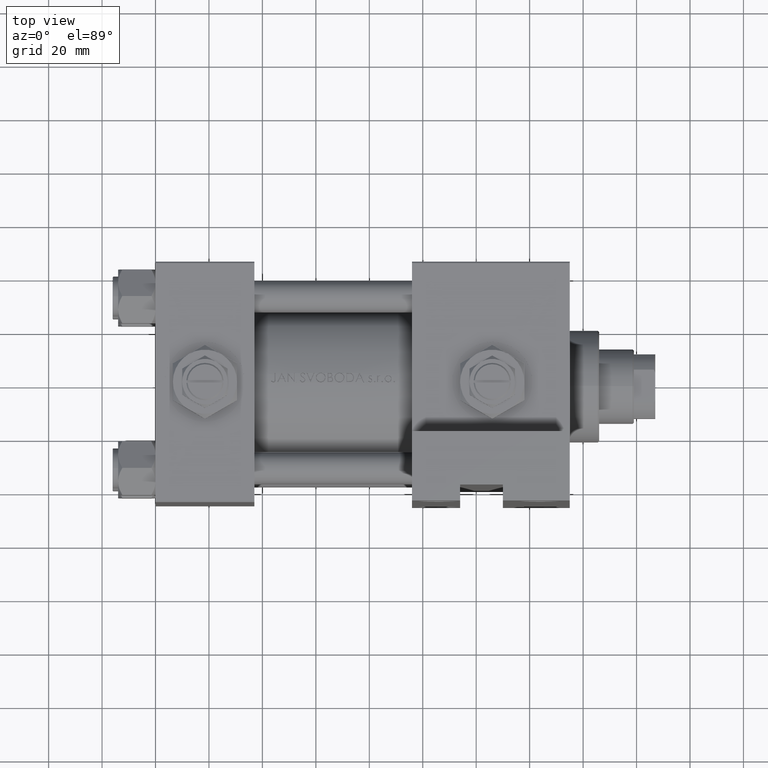
[diagram: clean part render]
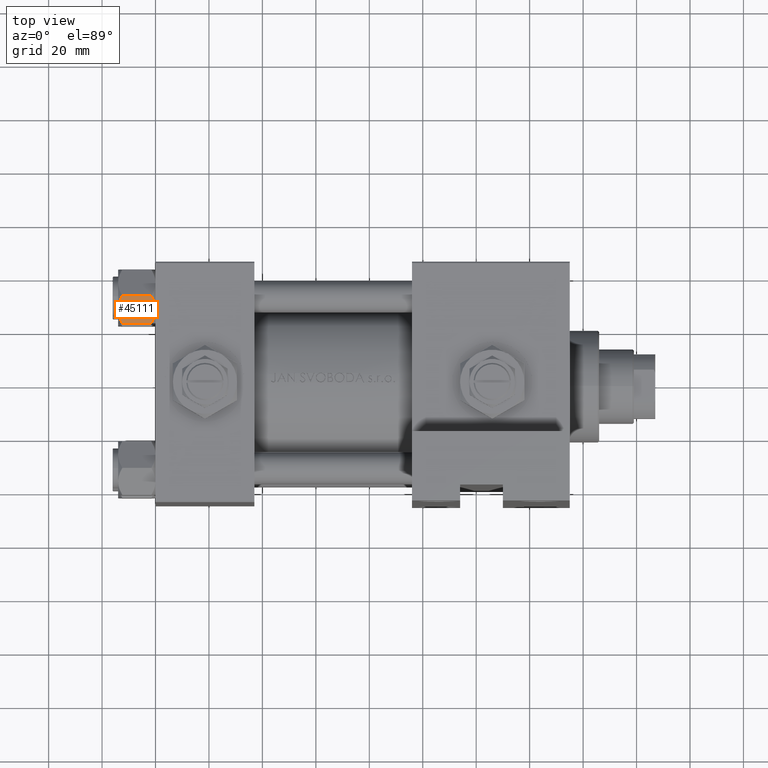
[diagram: same view with one face highlighted and labeled with its STEP entity id]
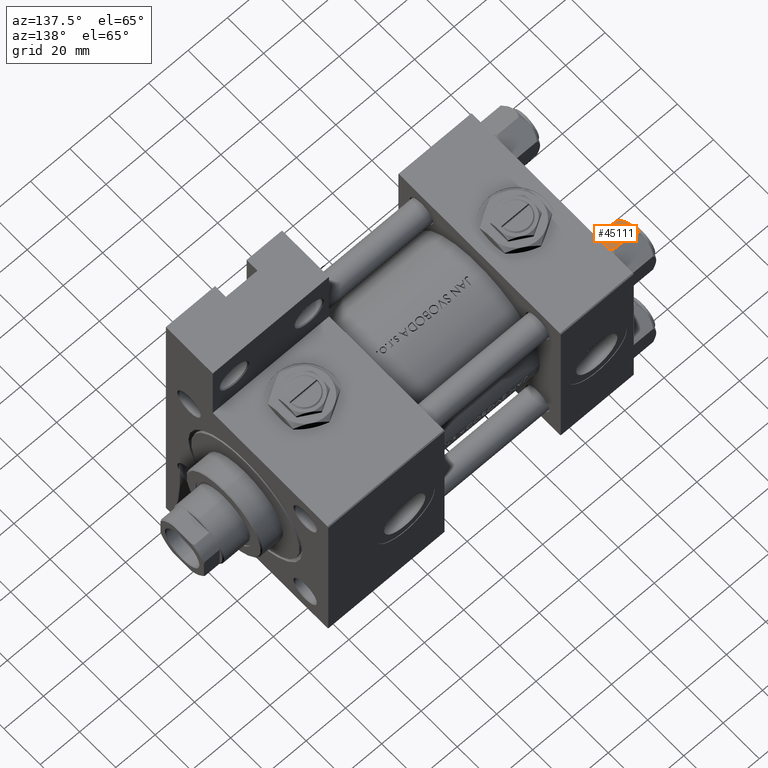
[diagram: same view with one face highlighted and labeled with its STEP entity id]
A machine part, top view. The second image highlights one B-rep face of the part: STEP entity #45111.
A second angle (auxiliary view) of the same face is appended — the face is thin or edge-on in the first view.
In plain terms, the highlighted planar face has unit normal (0, 0.5, -0.866).
Its self-contained STEP definition (entity closure, byte-faithful):
#903 = CARTESIAN_POINT ( 'NONE',  ( 7.700834831386344170, -6.788193195293096061, -0.1903979688073396681 ) ) ;
#1195 = EDGE_CURVE ( 'NONE', #1789, #31252, #28563, .T. ) ;
#1708 = B_SPLINE_CURVE_WITH_KNOTS ( 'NONE', 3,
 ( #37436, #40727, #32925, #21612, #33428, #48287, #14545, #44991 ),
 .UNSPECIFIED., .F., .F.,
 ( 4, 2, 2, 4 ),
 ( 2.544312114904007178E-07, 0.003011550106433541225, 0.004517197944044565316, 0.006022845781655588975 ),
 .UNSPECIFIED. ) ;
#1789 = VERTEX_POINT ( 'NONE', #42020 ) ;
#2139 = LINE ( 'NONE', #40844, #17579 ) ;
#3149 = CARTESIAN_POINT ( 'NONE',  ( 11.62000000000000099, -1.924525737834042474E-15, -1.556784808024813893 ) ) ;
#3747 = CARTESIAN_POINT ( 'NONE',  ( 8.202333004087897450, -5.919572880271052995, -0.03994118060690592109 ) ) ;
#7727 = CARTESIAN_POINT ( 'NONE',  ( 5.810000000000000497, -10.06321519197517667, -12.44321519197518811 ) ) ;
#11123 = ORIENTED_EDGE ( 'NONE', *, *, #1195, .F. ) ;
#14348 = ORIENTED_EDGE ( 'NONE', *, *, #29988, .T. ) ;
#14545 = CARTESIAN_POINT ( 'NONE',  ( 8.969430103550381617, -4.590921729663316242, -14.00000000000000178 ) ) ;
#14779 = DIRECTION ( 'NONE',  ( -0.5000000000000001110, -0.8660254037844384856, 0.000000000000000000 ) ) ;
#15279 = CARTESIAN_POINT ( 'NONE',  ( 10.69662495661650503, -1.599332489581334560, -0.7114554706434483844 ) ) ;
#16120 = AXIS2_PLACEMENT_3D ( 'NONE', #26859, #37668, #14779 ) ;
#17476 = VERTEX_POINT ( 'NONE', #38838 ) ;
#17579 = VECTOR ( 'NONE', #41094, 1000.000000000000000 ) ;
#18557 = CARTESIAN_POINT ( 'NONE',  ( 11.16498164529022574, -0.7881149087337312453, -1.101766453314952487 ) ) ;
#18677 = B_SPLINE_CURVE_WITH_KNOTS ( 'NONE', 3,
 ( #36935, #19054, #22595, #15279, #18557, #34410 ),
 .UNSPECIFIED., .F., .F.,
 ( 4, 2, 4 ),
 ( 0.006022845781655586372, 0.009013049135303633289, 0.01200325248895168020 ),
 .UNSPECIFIED. ) ;
#19054 = CARTESIAN_POINT ( 'NONE',  ( 9.220295946303432189, -4.156409344131454020, 3.521962994683380021E-15 ) ) ;
#19271 = CARTESIAN_POINT ( 'NONE',  ( 11.62000000000000099, -1.689012838886770227E-15, -12.44321519197518633 ) ) ;
#20263 = CARTESIAN_POINT ( 'NONE',  ( 8.715000000000003411, -5.031607595987592774, -14.00000000000000000 ) ) ;
#20721 = CARTESIAN_POINT ( 'NONE',  ( 8.460569896449618099, -5.472293462311865753, 3.427848222766236415E-15 ) ) ;
#21431 = VERTEX_POINT ( 'NONE', #19271 ) ;
#21612 = CARTESIAN_POINT ( 'NONE',  ( 9.974696630283190757, -2.849749030213793777, -13.69973261901325934 ) ) ;
#22595 = CARTESIAN_POINT ( 'NONE',  ( 9.716999946243698005, -3.296092779912227932, -0.1545239700039822972 ) ) ;
#22838 = FACE_OUTER_BOUND ( 'NONE', #35244, .T. ) ;
#23410 = VECTOR ( 'NONE', #47576, 1000.000000000000000 ) ;
#23910 = ORIENTED_EDGE ( 'NONE', *, *, #45863, .F. ) ;
#24006 = CARTESIAN_POINT ( 'NONE',  ( 5.810000000000000497, -10.06321519197517667, -1.556784808024811895 ) ) ;
#24040 = CARTESIAN_POINT ( 'NONE',  ( 6.265018354709780191, -9.275100283241448196, -12.89823354668505395 ) ) ;
#24503 = CARTESIAN_POINT ( 'NONE',  ( 6.731401448974991375, -8.467301068182914392, -0.7141438259524641730 ) ) ;
#24607 = EDGE_CURVE ( 'NONE', #32302, #1789, #2139, .T. ) ;
#24678 = CARTESIAN_POINT ( 'NONE',  ( 11.62000000000000099, -1.813166800014576593E-15, -14.00000000000000000 ) ) ;
#26859 = CARTESIAN_POINT ( 'NONE',  ( 11.62000000000000099, -1.813166800014576593E-15, -14.00000000000000000 ) ) ;
#27776 = CARTESIAN_POINT ( 'NONE',  ( 8.715000000000003411, -5.031607595987592774, 0.000000000000000000 ) ) ;
#28563 = B_SPLINE_CURVE_WITH_KNOTS ( 'NONE', 3,
 ( #24006, #38169, #24503, #39598, #903, #3747, #20721, #27776 ),
 .UNSPECIFIED., .F., .F.,
 ( 4, 2, 2, 4 ),
 ( 2.544312114902182352E-07, 0.003011550106433539056, 0.004517197944044561847, 0.006022845781655586372 ),
 .UNSPECIFIED. ) ;
#28791 = CARTESIAN_POINT ( 'NONE',  ( 7.713000053756305263, -6.767122412062954062, -13.84547602999601956 ) ) ;
#29988 = EDGE_CURVE ( 'NONE', #21431, #47792, #44537, .T. ) ;
#30013 = B_SPLINE_CURVE_WITH_KNOTS ( 'NONE', 3,
 ( #20263, #46936, #28791, #43400, #24040, #43648 ),
 .UNSPECIFIED., .F., .F.,
 ( 4, 2, 4 ),
 ( 0.006022845781655588975, 0.009013049135303631554, 0.01200325248895167674 ),
 .UNSPECIFIED. ) ;
#31252 = VERTEX_POINT ( 'NONE', #45968 ) ;
#32302 = VERTEX_POINT ( 'NONE', #7727 ) ;
#32925 = CARTESIAN_POINT ( 'NONE',  ( 10.69859855102500923, -1.595914123792265160, -13.28585617404753627 ) ) ;
#33428 = CARTESIAN_POINT ( 'NONE',  ( 9.729165168613651105, -3.275021996682085046, -13.80960203119265906 ) ) ;
#34045 = EDGE_CURVE ( 'NONE', #31252, #47792, #18677, .T. ) ;
#34156 = PLANE ( 'NONE',  #16120 ) ;
#34326 = ORIENTED_EDGE ( 'NONE', *, *, #43797, .F. ) ;
#34410 = CARTESIAN_POINT ( 'NONE',  ( 11.62000000000000099, -1.924525737834042474E-15, -1.556784808024813893 ) ) ;
#35244 = EDGE_LOOP ( 'NONE', ( #23910, #14348, #49280, #11123, #35498, #34326 ) ) ;
#35498 = ORIENTED_EDGE ( 'NONE', *, *, #24607, .F. ) ;
#36935 = CARTESIAN_POINT ( 'NONE',  ( 8.715000000000003411, -5.031607595987592774, 0.000000000000000000 ) ) ;
#37436 = CARTESIAN_POINT ( 'NONE',  ( 11.62000000000000099, -1.689012838886770227E-15, -12.44321519197518633 ) ) ;
#37668 = DIRECTION ( 'NONE',  ( -0.8660254037844385966, 0.5000000000000002220, 0.000000000000000000 ) ) ;
#38169 = CARTESIAN_POINT ( 'NONE',  ( 6.265545725125285514, -9.274186850887382150, -1.101239082899530430 ) ) ;
#38838 = CARTESIAN_POINT ( 'NONE',  ( 8.715000000000003411, -5.031607595987592774, -14.00000000000000000 ) ) ;
#39598 = CARTESIAN_POINT ( 'NONE',  ( 7.455303369716807182, -7.213466161761383333, -0.3002673809867365540 ) ) ;
#40727 = CARTESIAN_POINT ( 'NONE',  ( 11.16445427487472131, -0.7890283410877986237, -12.89876091710047135 ) ) ;
#40844 = CARTESIAN_POINT ( 'NONE',  ( 5.810000000000000497, -10.06321519197517667, -14.00000000000000000 ) ) ;
#41094 = DIRECTION ( 'NONE',  ( -0.000000000000000000, -0.000000000000000000, 1.000000000000000000 ) ) ;
#42020 = CARTESIAN_POINT ( 'NONE',  ( 5.810000000000000497, -10.06321519197517667, -1.556784808024811895 ) ) ;
#43400 = CARTESIAN_POINT ( 'NONE',  ( 6.733375043383495573, -8.463882702393842550, -13.28854452935654962 ) ) ;
#43648 = CARTESIAN_POINT ( 'NONE',  ( 5.810000000000000497, -10.06321519197517667, -12.44321519197518811 ) ) ;
#43797 = EDGE_CURVE ( 'NONE', #17476, #32302, #30013, .T. ) ;
#44537 = LINE ( 'NONE', #24678, #23410 ) ;
#44991 = CARTESIAN_POINT ( 'NONE',  ( 8.715000000000003411, -5.031607595987592774, -14.00000000000000000 ) ) ;
#45111 = ADVANCED_FACE ( 'NONE', ( #22838 ), #34156, .F. ) ;
#45863 = EDGE_CURVE ( 'NONE', #21431, #17476, #1708, .T. ) ;
#45968 = CARTESIAN_POINT ( 'NONE',  ( 8.715000000000003411, -5.031607595987592774, 0.000000000000000000 ) ) ;
#46936 = CARTESIAN_POINT ( 'NONE',  ( 8.209704053696569304, -5.906805847843727086, -14.00000000000000178 ) ) ;
#47576 = DIRECTION ( 'NONE',  ( -0.000000000000000000, -0.000000000000000000, 1.000000000000000000 ) ) ;
#47792 = VERTEX_POINT ( 'NONE', #3149 ) ;
#48287 = CARTESIAN_POINT ( 'NONE',  ( 9.227666995912100489, -4.143642311704125447, -13.96005881939309212 ) ) ;
#49280 = ORIENTED_EDGE ( 'NONE', *, *, #34045, .F. ) ;